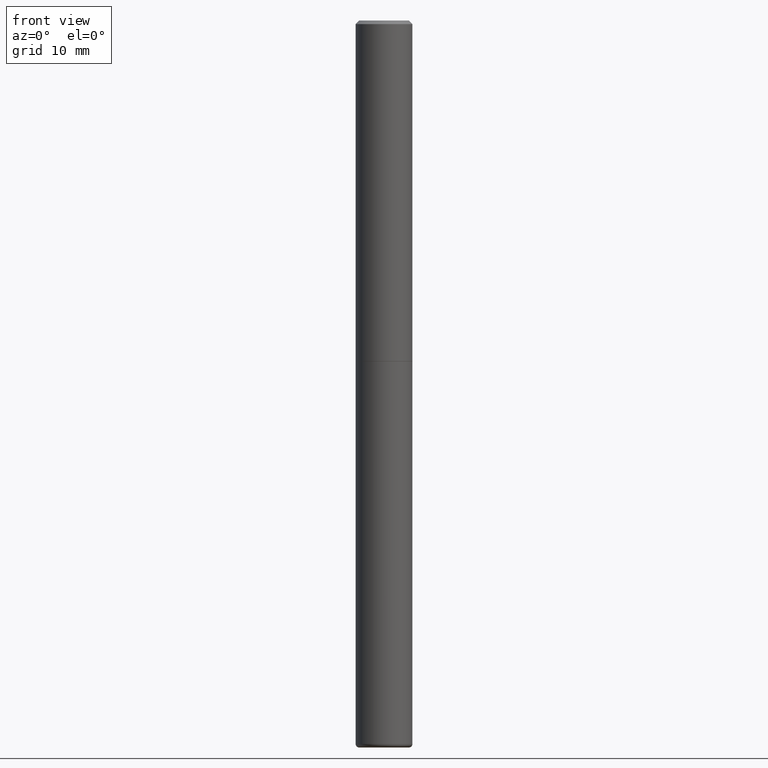
[diagram: clean part render]
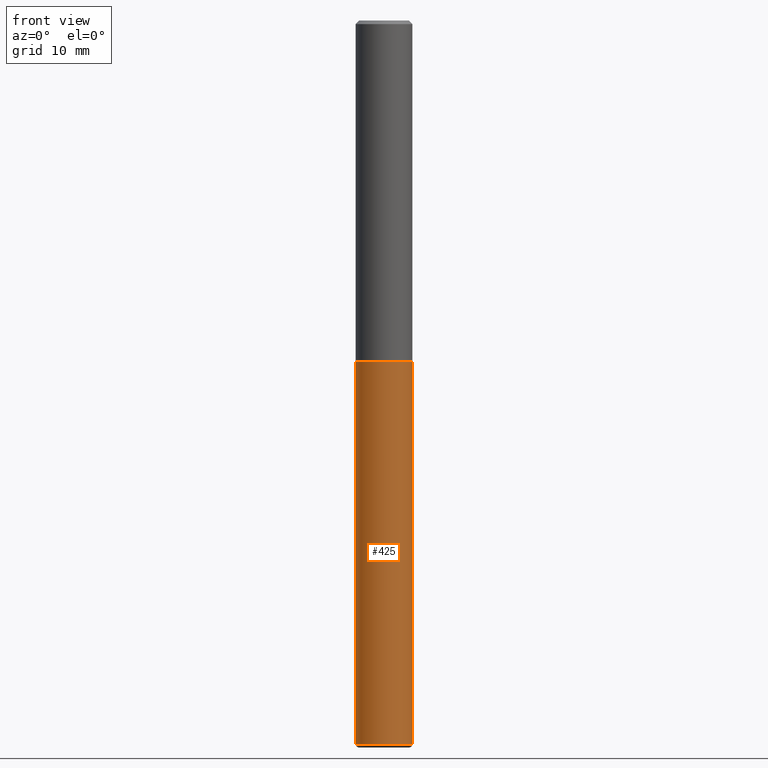
[diagram: same view with one face highlighted and labeled with its STEP entity id]
A machine part, front view. The second image highlights one B-rep face of the part: STEP entity #425.
In plain terms, the highlighted cylindrical surface (edge-blend (fillet) strip) has radius 3.9688 mm, axis along (-0, 0, 1).
Its self-contained STEP definition (entity closure, byte-faithful):
#2 = DIRECTION ( 'NONE',  ( -2.445468806185136597E-29, 3.491481338843145583E-15, 1.000000000000000000 ) ) ;
#23 = CARTESIAN_POINT ( 'NONE',  ( 0.1562500000000000000, -1.091087918388479174E-15, 7.619026212181150377E-30 ) ) ;
#25 = EDGE_CURVE ( 'NONE', #313, #68, #274, .T. ) ;
#35 = DIRECTION ( 'NONE',  ( -2.445468806185136597E-29, 3.491481338843145583E-15, 1.000000000000000000 ) ) ;
#45 = AXIS2_PLACEMENT_3D ( 'NONE', #235, #268, #194 ) ;
#68 = VERTEX_POINT ( 'NONE', #489 ) ;
#75 = CARTESIAN_POINT ( 'NONE',  ( -0.1562499999999999722, -9.111089924287262910E-15, -3.980000761538716514 ) ) ;
#78 = CARTESIAN_POINT ( 'NONE',  ( 0.1562499999999999722, -1.498718630588241542E-14, -3.980000761538716514 ) ) ;
#86 = VECTOR ( 'NONE', #307, 39.37007874015748143 ) ;
#95 = EDGE_LOOP ( 'NONE', ( #122, #207, #485, #216 ) ) ;
#111 = CIRCLE ( 'NONE', #45, 0.1562500000000000000 ) ;
#119 = AXIS2_PLACEMENT_3D ( 'NONE', #338, #2, #148 ) ;
#122 = ORIENTED_EDGE ( 'NONE', *, *, #25, .F. ) ;
#127 = VECTOR ( 'NONE', #444, 39.37007874015748143 ) ;
#134 = LINE ( 'NONE', #23, #127 ) ;
#148 = DIRECTION ( 'NONE',  ( 1.000000000000000000, -6.982962677686266711E-15, 4.876176775795936353E-29 ) ) ;
#194 = DIRECTION ( 'NONE',  ( 1.000000000000000000, -6.982962677686269077E-15, 0.000000000000000000 ) ) ;
#201 = AXIS2_PLACEMENT_3D ( 'NONE', #234, #35, #345 ) ;
#207 = ORIENTED_EDGE ( 'NONE', *, *, #344, .T. ) ;
#211 = CARTESIAN_POINT ( 'NONE',  ( 0.1562500000000000000, -7.637615428719378669E-15, -1.875000000000000444 ) ) ;
#216 = ORIENTED_EDGE ( 'NONE', *, *, #369, .F. ) ;
#231 = CYLINDRICAL_SURFACE ( 'NONE', #119, 0.1562500000000000000 ) ;
#234 = CARTESIAN_POINT ( 'NONE',  ( 9.732967710936019417E-29, -1.389609838749393704E-14, -3.980000761538716514 ) ) ;
#235 = CARTESIAN_POINT ( 'NONE',  ( 4.585254011597131679E-29, -6.546527510330899496E-15, -1.875000000000000444 ) ) ;
#249 = EDGE_CURVE ( 'NONE', #420, #255, #134, .T. ) ;
#255 = VERTEX_POINT ( 'NONE', #211 ) ;
#268 = DIRECTION ( 'NONE',  ( -2.445468806185136597E-29, 3.491481338843145583E-15, 1.000000000000000000 ) ) ;
#274 = LINE ( 'NONE', #468, #86 ) ;
#300 = FACE_OUTER_BOUND ( 'NONE', #95, .T. ) ;
#307 = DIRECTION ( 'NONE',  ( -2.445468806185136877E-29, 3.491481338843145188E-15, 1.000000000000000000 ) ) ;
#313 = VERTEX_POINT ( 'NONE', #75 ) ;
#334 = CIRCLE ( 'NONE', #201, 0.1562499999999999722 ) ;
#338 = CARTESIAN_POINT ( 'NONE',  ( 0.000000000000000000, 0.000000000000000000, 0.000000000000000000 ) ) ;
#344 = EDGE_CURVE ( 'NONE', #313, #420, #334, .T. ) ;
#345 = DIRECTION ( 'NONE',  ( 1.000000000000000000, -6.982962677686264344E-15, 0.000000000000000000 ) ) ;
#369 = EDGE_CURVE ( 'NONE', #68, #255, #111, .T. ) ;
#420 = VERTEX_POINT ( 'NONE', #78 ) ;
#425 = ADVANCED_FACE ( 'NONE', ( #300 ), #231, .T. ) ;
#444 = DIRECTION ( 'NONE',  ( -2.445468806185136877E-29, 3.491481338843145188E-15, 1.000000000000000000 ) ) ;
#468 = CARTESIAN_POINT ( 'NONE',  ( -0.1562500000000000000, 1.110223024625156540E-15, -7.685836078523291160E-30 ) ) ;
#485 = ORIENTED_EDGE ( 'NONE', *, *, #249, .T. ) ;
#489 = CARTESIAN_POINT ( 'NONE',  ( -0.1562500000000000000, -9.111089924287261332E-15, -1.875000000000000444 ) ) ;